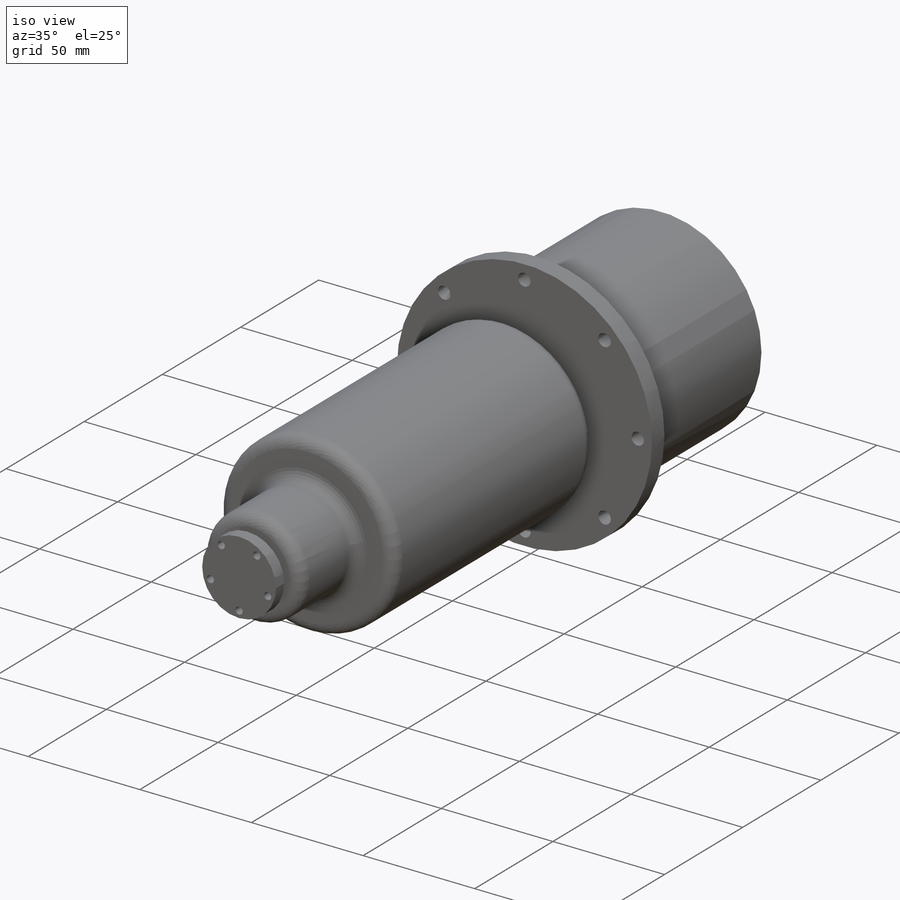
[diagram: iso view]
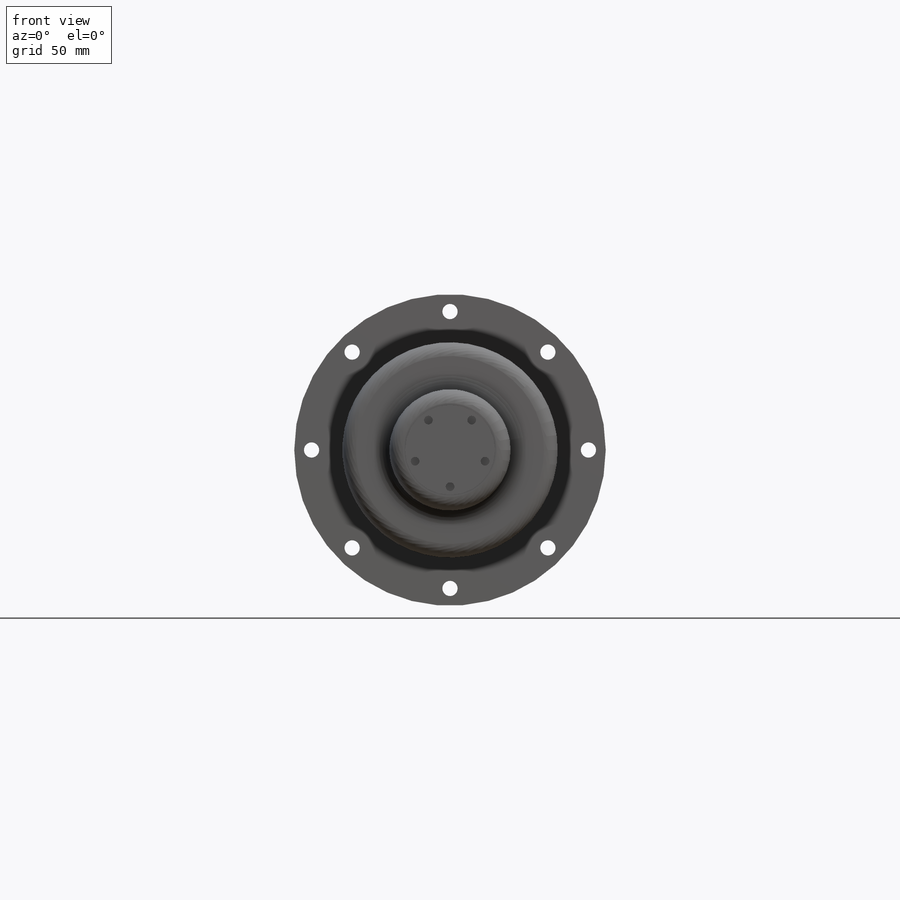
[diagram: front view]
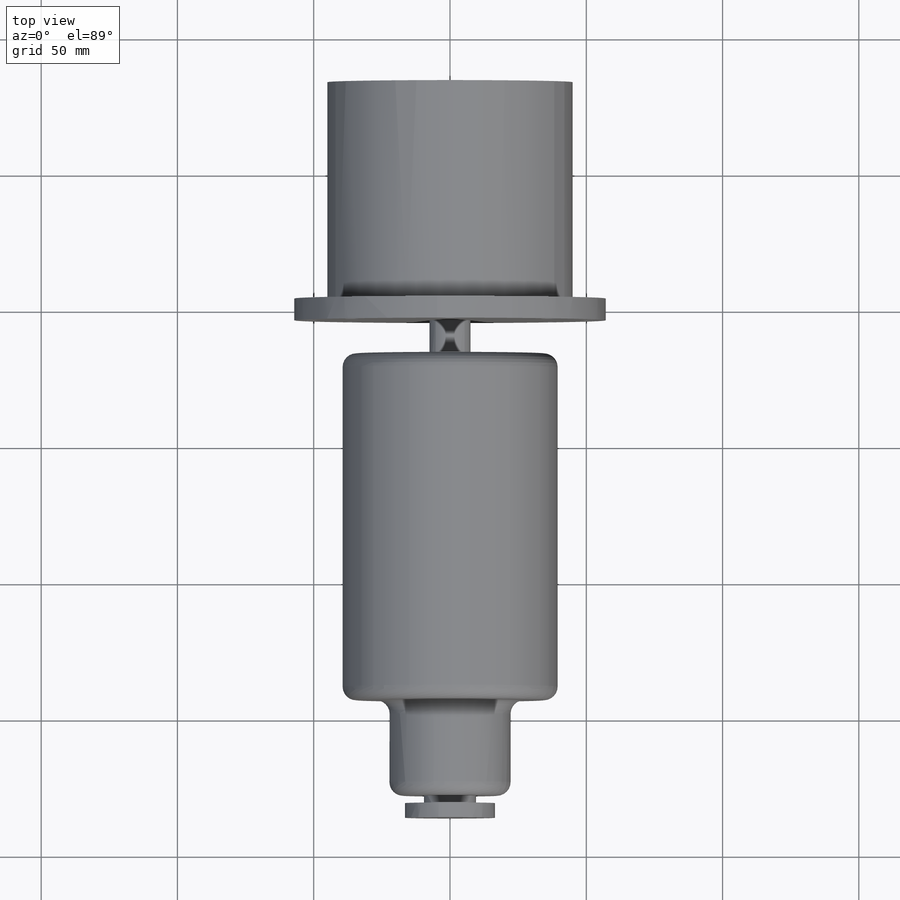
[diagram: top view]
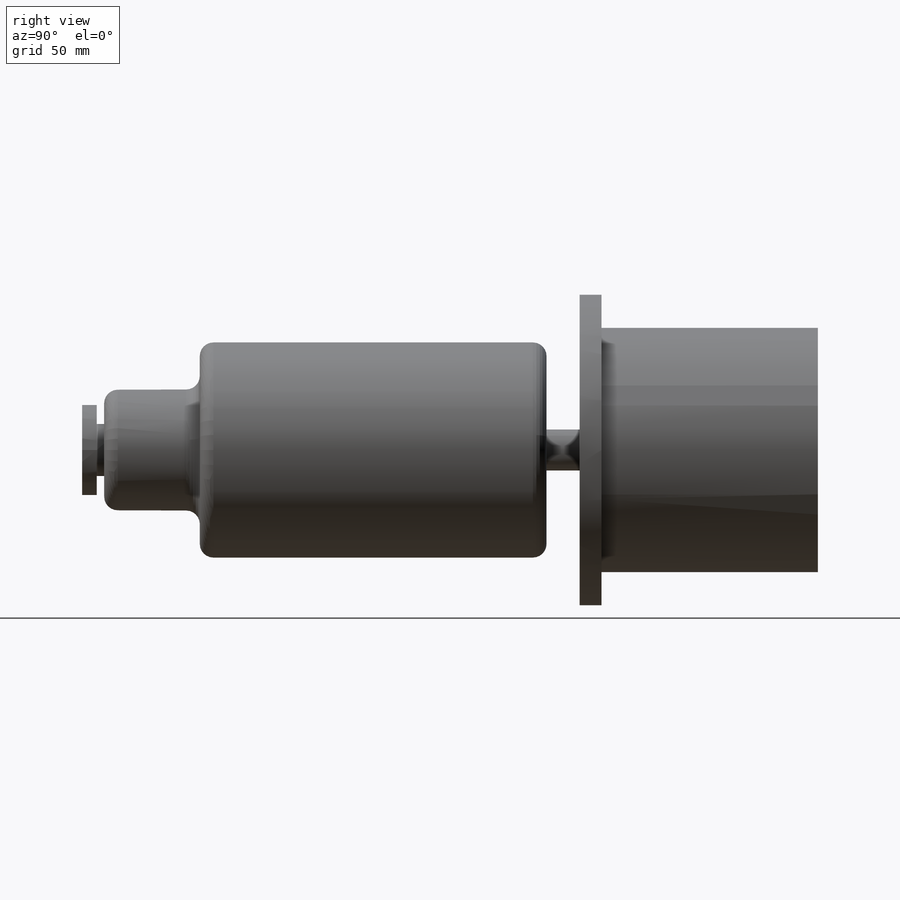
[diagram: right view]
SOLIDWORKS PART (.sldprt)
format: sldprt  version: not decoded by parser v0  size: 302,080 bytes
history: native  units: mm
features: sketch x9, extrude x7, cut_extrude x2, material x1, fillet x1 (+15 scaffold rows collapsed)
feature tree (35):
  scaffold x15  (default folders/planes/origin — collapsed)
  material  "Material <not specified>"
  sketch  "Sketch1"  dims[D1=114.3mm]
  extrude  "Extrude1"  Depth=8mm
  sketch  "Sketch3"  dims[D1=15.0mm]
  extrude  "Extrude2"  Depth=12.166mm
  sketch  "Sketch4"  dims[D1=79.0mm]
  extrude  "Extrude3"  Depth=127.24mm
  sketch  "Sketch5"  dims[D1=44.45mm]
  extrude  "Extrude4"  Depth=35.083496mm
  sketch  "Sketch6"  dims[D1=19.05mm]
  extrude  "Extrude5"  Depth=2.702052mm
  sketch  "Sketch7"  dims[D1=33.0mm]
  extrude  "Extrude6"  Depth=5.3848mm
  sketch  "Sketch8"  dims[c1.D1=27.0mm c1.D6=3.2mm c1.D2=~16.181467mm c2.D2=72.0deg c2.D3=~16.181467mm c3.D3=72.0deg c3.D4=~20.955956mm c4.D4=72.0deg c4.D5=~14.233053mm c5.D5=72.0deg]
  cut_extrude  "Cut-Extrude1"  Depth=5.3848mm
  sketch  "Sketch10"  dims[c1.D3=101.6mm c1.D4=5.58mm c1.D1=~133.826824mm c2.D1=45.0deg c2.D2=~123.423348mm c3.D2=45.0deg c3.D3=~133.826824mm]
  cut_extrude  "Cut-Extrude2"  [1 undecoded]
  sketch  "Sketch11"  dims[D1=90.0mm]
  extrude  "Extrude7"  Depth=79.4mm
  fillet  "Fillet1"  Radius=5mm
decode coverage: 18 of 19 modeling features carry decoded parameters
note: ~ marks probable driven/reference dimensions
note: 1 parameter value undecoded
note: suppression state not decoded; provenance and decode notes live in map.json
